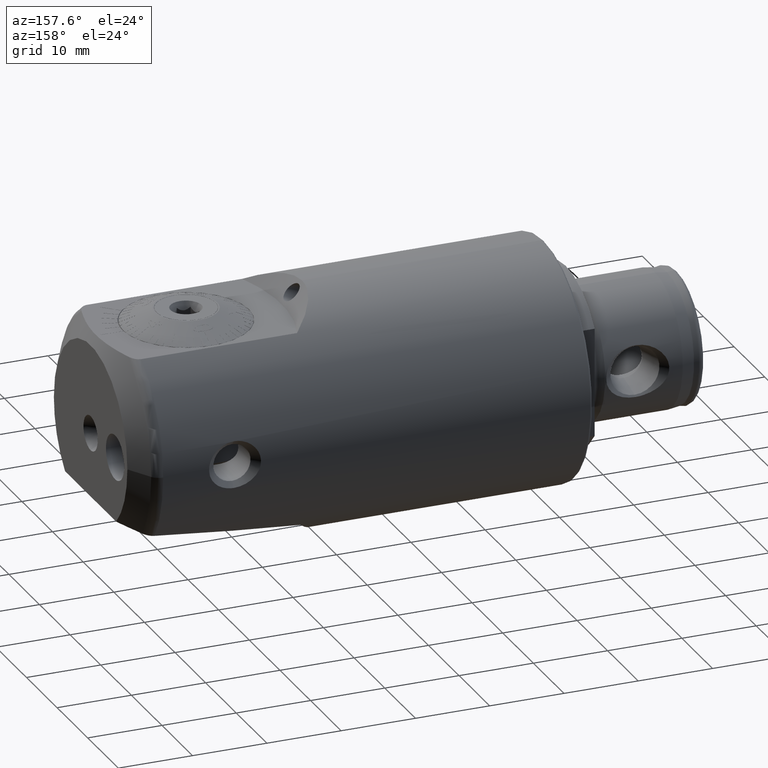
[diagram: clean part render]
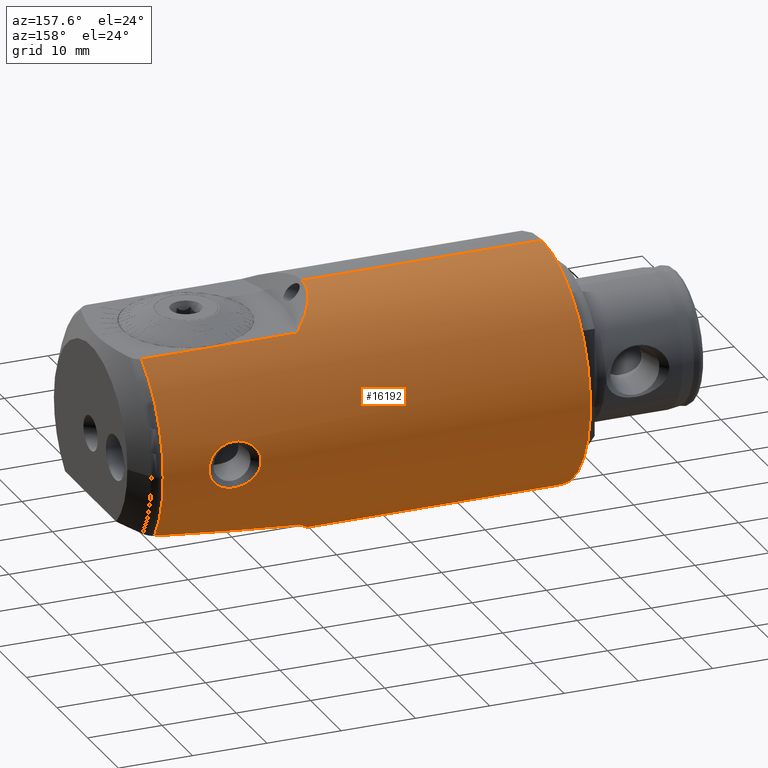
[diagram: same view with one face highlighted and labeled with its STEP entity id]
A machine part, auxiliary view. The second image highlights one B-rep face of the part: STEP entity #16192.
In plain terms, the highlighted cylindrical surface (partial cylindrical patch) has radius 16 mm, axis along (-1, -0, -0).
Its self-contained STEP definition (entity closure, byte-faithful):
#141 = AXIS2_PLACEMENT_3D ( 'NONE', #17672, #17674, #17676 ) ;
#301 = AXIS2_PLACEMENT_3D ( 'NONE', #9101, #9102, #9099 ) ;
#493 = VERTEX_POINT ( 'NONE', #16248 ) ;
#518 = VERTEX_POINT ( 'NONE', #16259 ) ;
#648 = CARTESIAN_POINT ( 'NONE',  ( 65.93024759672798000, 15.68066805693000500, -3.180668056930005900 ) ) ;
#653 = CARTESIAN_POINT ( 'NONE',  ( 66.14999999999999100, 15.68066805693001200, -3.180668056930010800 ) ) ;
#656 = CARTESIAN_POINT ( 'NONE',  ( 65.70956030477118800, 15.68459056435748000, -3.161498731312989200 ) ) ;
#657 = CARTESIAN_POINT ( 'NONE',  ( 65.28014272687077800, 15.69948841960792900, -3.086667906047177600 ) ) ;
#658 = CARTESIAN_POINT ( 'NONE',  ( 65.06939656807824700, 15.71045470693976200, -3.031069612519591900 ) ) ;
#659 = CARTESIAN_POINT ( 'NONE',  ( 64.44954066399158400, 15.75256210033807300, -2.807110196264788600 ) ) ;
#660 = CARTESIAN_POINT ( 'NONE',  ( 64.06681502441023200, 15.79223143391833200, -2.586464529091092100 ) ) ;
#661 = CARTESIAN_POINT ( 'NONE',  ( 63.56981425729423300, 15.85483690453569300, -2.155281846127038700 ) ) ;
#662 = CARTESIAN_POINT ( 'NONE',  ( 63.41991416715993100, 15.87578117310208400, -1.997441681491095400 ) ) ;
#663 = CARTESIAN_POINT ( 'NONE',  ( 63.15287156098673200, 15.91542126888841000, -1.652140115424484400 ) ) ;
#664 = CARTESIAN_POINT ( 'NONE',  ( 63.03582273714429400, 15.93412963509329900, -1.463579121479832600 ) ) ;
#665 = CARTESIAN_POINT ( 'NONE',  ( 62.84766771695179700, 15.96524657591765900, -1.072125385829373800 ) ) ;
#666 = CARTESIAN_POINT ( 'NONE',  ( 62.77478718657901200, 15.97791685011082700, -0.8673640699450379000 ) ) ;
#667 = CARTESIAN_POINT ( 'NONE',  ( 62.67513475264774300, 15.99544404931646500, -0.4380832844032718800 ) ) ;
#668 = CARTESIAN_POINT ( 'NONE',  ( 62.65010864343526000, 15.99998049989807400, -0.2194091680261499900 ) ) ;
#669 = CARTESIAN_POINT ( 'NONE',  ( 62.64989206529220000, 16.00001937289443500, 0.2165558753196834800 ) ) ;
#670 = CARTESIAN_POINT ( 'NONE',  ( 62.67525713860848700, 15.99542321432288700, 0.4381840948333076100 ) ) ;
#671 = CARTESIAN_POINT ( 'NONE',  ( 62.77408624225647300, 15.97803944789127900, 0.8647684706872269500 ) ) ;
#672 = CARTESIAN_POINT ( 'NONE',  ( 62.84678149136546900, 15.96539115991863000, 1.070445884492196700 ) ) ;
#673 = CARTESIAN_POINT ( 'NONE',  ( 63.03756251934264300, 15.93384389939410400, 1.467033697832248000 ) ) ;
#674 = CARTESIAN_POINT ( 'NONE',  ( 63.15365533904891700, 15.91530134820884100, 1.653251667751240100 ) ) ;
#675 = CARTESIAN_POINT ( 'NONE',  ( 63.42021544349785200, 15.87574004170802900, 1.997732767246089400 ) ) ;
#676 = CARTESIAN_POINT ( 'NONE',  ( 63.57296804875442600, 15.85442036536619700, 2.158277827120692800 ) ) ;
#677 = CARTESIAN_POINT ( 'NONE',  ( 63.90265460426788700, 15.81292969647114400, 2.443780414693624200 ) ) ;
#678 = CARTESIAN_POINT ( 'NONE',  ( 64.07992478002749700, 15.79266909325262700, 2.569836419364174100 ) ) ;
#679 = CARTESIAN_POINT ( 'NONE',  ( 64.45857213803472500, 15.75528231149727900, 2.789898850547859700 ) ) ;
#680 = CARTESIAN_POINT ( 'NONE',  ( 64.65873764266085300, 15.73834313276658400, 2.882744578033316500 ) ) ;
#681 = CARTESIAN_POINT ( 'NONE',  ( 65.27310972021663800, 15.69663236635317600, 3.104573372152891400 ) ) ;
#682 = CARTESIAN_POINT ( 'NONE',  ( 65.71426056626000900, 15.68066805693001200, 3.180668056930006800 ) ) ;
#683 = CARTESIAN_POINT ( 'NONE',  ( 66.14999999999999100, 15.68066805693000800, 3.180668056930005900 ) ) ;
#685 = CARTESIAN_POINT ( 'NONE',  ( 50.89302407359748800, 1.959483619477471300E-015, -16.00000000000000000 ) ) ;
#694 = CARTESIAN_POINT ( 'NONE',  ( 50.89302407359749500, 0.4898172530677997200, -16.00000000000000000 ) ) ;
#701 = CARTESIAN_POINT ( 'NONE',  ( 50.91845784687835400, 0.9785665110950624300, -15.97755473753653600 ) ) ;
#702 = CARTESIAN_POINT ( 'NONE',  ( 51.02016283566184300, 1.953930175133082900, -15.88779420430404700 ) ) ;
#703 = CARTESIAN_POINT ( 'NONE',  ( 51.09731911177381400, 2.443562096065129600, -15.81969769365619500 ) ) ;
#704 = CARTESIAN_POINT ( 'NONE',  ( 51.39715600109895600, 3.869897582993521800, -15.55503828478508400 ) ) ;
#705 = CARTESIAN_POINT ( 'NONE',  ( 51.68771900386881400, 4.775527532278456300, -15.29853840782103300 ) ) ;
#706 = CARTESIAN_POINT ( 'NONE',  ( 52.42394297953773500, 6.502085586484335000, -14.64833859702722500 ) ) ;
#707 = CARTESIAN_POINT ( 'NONE',  ( 52.85687732338615800, 7.294559223542079500, -14.26587555572344900 ) ) ;
#708 = CARTESIAN_POINT ( 'NONE',  ( 53.58255410240055700, 8.399808758080389700, -13.62441421628701800 ) ) ;
#709 = CARTESIAN_POINT ( 'NONE',  ( 53.83732533592468900, 8.754133212543072400, -13.39915182108889100 ) ) ;
#710 = CARTESIAN_POINT ( 'NONE',  ( 54.37061426253316700, 9.436767527475469200, -12.92747216047762200 ) ) ;
#711 = CARTESIAN_POINT ( 'NONE',  ( 54.64963269316368200, 9.765388110493335100, -12.68061091313664900 ) ) ;
#712 = CARTESIAN_POINT ( 'NONE',  ( 54.93487726142884500, 10.07676873988002200, -12.42814273183956800 ) ) ;
#833 = CARTESIAN_POINT ( 'NONE',  ( 18.30000000000000100, 0.0000000000000000000, 0.0000000000000000000 ) ) ;
#834 = DIRECTION ( 'NONE',  ( -1.000000000000000000, -0.0000000000000000000, -0.0000000000000000000 ) ) ;
#835 = DIRECTION ( 'NONE',  ( 0.0000000000000000000, 0.0000000000000000000, 1.000000000000000000 ) ) ;
#1752 = CARTESIAN_POINT ( 'NONE',  ( 66.14999999999999100, 15.68066805693000800, 3.180668056930005900 ) ) ;
#1753 = CARTESIAN_POINT ( 'NONE',  ( 66.36794414436711500, 15.68066805693000500, 3.180668056930005400 ) ) ;
#1757 = CARTESIAN_POINT ( 'NONE',  ( -7.755547907243324000, 0.0000000000000000000, 16.00000000000000000 ) ) ;
#1758 = CARTESIAN_POINT ( 'NONE',  ( 66.58706576147757500, 15.68448601364704900, 3.162021496453044200 ) ) ;
#1759 = CARTESIAN_POINT ( 'NONE',  ( 67.02105548486426300, 15.69951755015195400, 3.086523958888330200 ) ) ;
#1760 = CARTESIAN_POINT ( 'NONE',  ( 67.23172122014574400, 15.71054162491206800, 3.030597723974175500 ) ) ;
#1761 = CARTESIAN_POINT ( 'NONE',  ( 67.64067301998213100, 15.73830018833134000, 2.882975527926333800 ) ) ;
#1762 = CARTESIAN_POINT ( 'NONE',  ( 67.84050650532250900, 15.75519863752340300, 2.790372992525374900 ) ) ;
#1763 = CARTESIAN_POINT ( 'NONE',  ( 68.21950306092443800, 15.79260532957827600, 2.570230038228125600 ) ) ;
#1764 = CARTESIAN_POINT ( 'NONE',  ( 68.39630843057008700, 15.81281504738049300, 2.444465142838781400 ) ) ;
#1765 = CARTESIAN_POINT ( 'NONE',  ( 68.72426408313863500, 15.85405636346697700, 2.160885554866106300 ) ) ;
#1766 = CARTESIAN_POINT ( 'NONE',  ( 68.87701046517692300, 15.87534278570123000, 2.000922349376928400 ) ) ;
#1767 = CARTESIAN_POINT ( 'NONE',  ( 69.14479553096246900, 15.91505720830429700, 1.655642735663022800 ) ) ;
#1768 = CARTESIAN_POINT ( 'NONE',  ( 69.25955576764674500, 15.93338356920340900, 1.471693452280310000 ) ) ;
#1769 = CARTESIAN_POINT ( 'NONE',  ( 69.44922060849687300, 15.96471446435926800, 1.080039653125628400 ) ) ;
#1770 = CARTESIAN_POINT ( 'NONE',  ( 69.52434807641438400, 15.97776717693937000, 0.8696141877531715600 ) ) ;
#1771 = CARTESIAN_POINT ( 'NONE',  ( 69.62372863741734400, 15.99524176721875400, 0.4444250265720987600 ) ) ;
#1772 = CARTESIAN_POINT ( 'NONE',  ( 69.64942698229749900, 15.99989715092440800, 0.2279289502206821000 ) ) ;
#1773 = CARTESIAN_POINT ( 'NONE',  ( 69.65055426844531900, 16.00009948382853200, -0.2132532628065404700 ) ) ;
#1774 = CARTESIAN_POINT ( 'NONE',  ( 69.62552650801981700, 15.99556420600343300, -0.4328250147029831200 ) ) ;
#1775 = CARTESIAN_POINT ( 'NONE',  ( 69.52777043158556600, 15.97836296524794300, -0.8586784686503306000 ) ) ;
#1776 = CARTESIAN_POINT ( 'NONE',  ( 69.45367959496803700, 15.96547299089265000, -1.069022849691087400 ) ) ;
#1777 = CARTESIAN_POINT ( 'NONE',  ( 69.16973568678189100, 15.91850380481145100, -1.660658700799196200 ) ) ;
#1778 = CARTESIAN_POINT ( 'NONE',  ( 68.89395397208214400, 15.87547185180961100, -2.013125500134846500 ) ) ;
#1779 = CARTESIAN_POINT ( 'NONE',  ( 68.40030887728271100, 15.81328064468309700, -2.441510895268363100 ) ) ;
#1780 = CARTESIAN_POINT ( 'NONE',  ( 68.21975792345456600, 15.79263776535504800, -2.570020815454727300 ) ) ;
#1781 = CARTESIAN_POINT ( 'NONE',  ( 67.84174541365320000, 15.75531366458977600, -2.789714306157453200 ) ) ;
#1782 = CARTESIAN_POINT ( 'NONE',  ( 67.64419950772416700, 15.73856262980366900, -2.881559651726671100 ) ) ;
#1783 = CARTESIAN_POINT ( 'NONE',  ( 67.23245962075891700, 15.71056891051230600, -3.030472601221805300 ) ) ;
#1784 = CARTESIAN_POINT ( 'NONE',  ( 67.01765116724907000, 15.69938174379848000, -3.087209459655158500 ) ) ;
#1785 = CARTESIAN_POINT ( 'NONE',  ( 66.58730983644572600, 15.68451249469434600, -3.161885068922365900 ) ) ;
#1786 = CARTESIAN_POINT ( 'NONE',  ( 66.36982747392245600, 15.68066805693000800, -3.180668056930005000 ) ) ;
#1787 = CARTESIAN_POINT ( 'NONE',  ( 66.14999999999999100, 15.68066805693001200, -3.180668056930010800 ) ) ;
#1788 = CARTESIAN_POINT ( 'NONE',  ( -7.755547907243324000, 1.959434878635765100E-015, -16.00000000000000000 ) ) ;
#1789 = CARTESIAN_POINT ( 'NONE',  ( 54.29786653517982800, 8.419407272766681800, 13.62180372810708700 ) ) ;
#1790 = DIRECTION ( 'NONE',  ( -1.000000000000000000, -0.0000000000000000000, -0.0000000000000000000 ) ) ;
#1791 = DIRECTION ( 'NONE',  ( -1.000000000000000000, -0.0000000000000000000, -0.0000000000000000000 ) ) ;
#1792 = CARTESIAN_POINT ( 'NONE',  ( 54.89585076262644500, 8.968695557326043400, 13.25000000000000500 ) ) ;
#1794 = CARTESIAN_POINT ( 'NONE',  ( 53.73657514754146500, 7.826659259926636900, 13.97387064549644500 ) ) ;
#1795 = CARTESIAN_POINT ( 'NONE',  ( 52.96294649817802000, 6.854734206638621400, 14.46181292070098900 ) ) ;
#1796 = CARTESIAN_POINT ( 'NONE',  ( 52.71653490296843400, 6.516862720734882200, 14.61772193393445300 ) ) ;
#1797 = CARTESIAN_POINT ( 'NONE',  ( 52.25039493581805800, 5.808505361319873800, 14.91336849025902500 ) ) ;
#1798 = CARTESIAN_POINT ( 'NONE',  ( 52.03315880461074300, 5.441553644350830300, 15.05152567971204100 ) ) ;
#1799 = CARTESIAN_POINT ( 'NONE',  ( 51.63714565741103300, 4.685207867041570200, 15.30384783621396000 ) ) ;
#1800 = CARTESIAN_POINT ( 'NONE',  ( 51.45778869791659800, 4.294982852061418800, 15.41838099808054400 ) ) ;
#1801 = CARTESIAN_POINT ( 'NONE',  ( 51.14108803634837100, 3.487275837665125200, 15.62089170097244500 ) ) ;
#1802 = CARTESIAN_POINT ( 'NONE',  ( 51.00296599382908600, 3.066686304640677800, 15.70936846456887700 ) ) ;
#1803 = CARTESIAN_POINT ( 'NONE',  ( 50.66770138945963000, 1.780917082867484500, 15.92430921988762400 ) ) ;
#1804 = CARTESIAN_POINT ( 'NONE',  ( 50.55000000000003300, 0.9023672326635421300, 16.00000000000000000 ) ) ;
#1805 = CARTESIAN_POINT ( 'NONE',  ( 50.55000000000001800, 0.0000000000000000000, 16.00000000000000000 ) ) ;
#1806 = CARTESIAN_POINT ( 'NONE',  ( -7.755547907243324000, 8.968695557326043400, 13.25000000000000400 ) ) ;
#1807 = DIRECTION ( 'NONE',  ( -1.000000000000000000, -0.0000000000000000000, -0.0000000000000000000 ) ) ;
#1808 = CARTESIAN_POINT ( 'NONE',  ( 54.93487726142884500, 10.07676873988002200, -12.42814273183956800 ) ) ;
#1809 = CARTESIAN_POINT ( 'NONE',  ( 60.95737948481706800, 11.25322131286442400, -11.47427208783499000 ) ) ;
#1810 = CARTESIAN_POINT ( 'NONE',  ( 75.82457351945704700, 1.006387064120248000E-014, 0.0000000000000000000 ) ) ;
#1811 = DIRECTION ( 'NONE',  ( 1.000000000000000000, 1.234262531949140800E-016, -0.0000000000000000000 ) ) ;
#1812 = DIRECTION ( 'NONE',  ( 0.0000000000000000000, 1.000000000000000000, 0.0000000000000000000 ) ) ;
#1814 = CARTESIAN_POINT ( 'NONE',  ( 67.96732918834933900, 12.28337525204242700, -10.36400512733793500 ) ) ;
#1815 = CARTESIAN_POINT ( 'NONE',  ( 75.82457351945704700, 13.14663425939954100, -9.119539881462358700 ) ) ;
#1960 = EDGE_LOOP ( 'NONE', ( #20132, #20133 ) ) ;
#1979 = EDGE_LOOP ( 'NONE', ( #20134, #20135, #20136, #20137, #20138, #20139, #20140, #20141, #20142 ) ) ;
#5147 = B_SPLINE_CURVE_WITH_KNOTS ( 'NONE', 3,
 ( #653, #648, #656, #657, #658, #659, #660, #661, #662, #663, #664, #665, #666, #667, #668, #669, #670, #671, #672, #673, #674, #675, #676, #677, #678, #679, #680, #681, #682, #683 ),
 .UNSPECIFIED., .F., .F.,
 ( 4, 2, 2, 2, 2, 2, 2, 2, 2, 2, 2, 2, 2, 2, 4 ),
 ( 0.01844048866585898400, 0.01909625740138253700, 0.01975202613690609300, 0.02106356360795320200, 0.02171933234347674100, 0.02237510107900028000, 0.02303086981452381900, 0.02368663855004735800, 0.02434240728557089700, 0.02499817602109443600, 0.02565394475661797500, 0.02630971349214151400, 0.02696548222766505200, 0.02762125096318859100, 0.02893278843423566900 ),
 .UNSPECIFIED. ) ;
#5157 = B_SPLINE_CURVE_WITH_KNOTS ( 'NONE', 3,
 ( #685, #694, #701, #702, #703, #704, #705, #706, #707, #708, #709, #710, #711, #712 ),
 .UNSPECIFIED., .F., .F.,
 ( 4, 2, 2, 2, 2, 2, 4 ),
 ( 0.02723061259596744300, 0.02868676516256175200, 0.03014291772915605700, 0.03305522286234467000, 0.03596752799553328000, 0.03742368056212758100, 0.03887983312872189000 ),
 .UNSPECIFIED. ) ;
#5361 = VERTEX_POINT ( 'NONE', #11554 ) ;
#8291 = LINE ( 'NONE', #1757, #8299 ) ;
#8294 = CIRCLE ( 'NONE', #10596, 15.99999999999999600 ) ;
#8296 = LINE ( 'NONE', #1788, #8297 ) ;
#8297 = VECTOR ( 'NONE', #1790, 1000.000000000000000 ) ;
#8299 = VECTOR ( 'NONE', #1791, 1000.000000000000000 ) ;
#8300 = LINE ( 'NONE', #1806, #8301 ) ;
#8301 = VECTOR ( 'NONE', #1807, 1000.000000000000000 ) ;
#9099 = DIRECTION ( 'NONE',  ( 0.0000000000000000000, 0.0000000000000000000, 1.000000000000000000 ) ) ;
#9101 = CARTESIAN_POINT ( 'NONE',  ( -7.755547907243324000, 0.0000000000000000000, 0.0000000000000000000 ) ) ;
#9102 = DIRECTION ( 'NONE',  ( -1.000000000000000000, -0.0000000000000000000, -0.0000000000000000000 ) ) ;
#10112 = FACE_BOUND ( 'NONE', #1960, .T. ) ;
#10126 = FACE_OUTER_BOUND ( 'NONE', #1979, .T. ) ;
#10128 = CYLINDRICAL_SURFACE ( 'NONE', #301, 16.00000000000000000 ) ;
#10596 = AXIS2_PLACEMENT_3D ( 'NONE', #1810, #1811, #1812 ) ;
#11056 = EDGE_CURVE ( 'NONE', #518, #493, #5147, .T. ) ;
#11063 = EDGE_CURVE ( 'NONE', #12086, #12094, #5157, .T. ) ;
#11088 = EDGE_CURVE ( 'NONE', #5361, #12085, #13462, .T. ) ;
#11129 = EDGE_CURVE ( 'NONE', #16111, #12098, #13512, .T. ) ;
#11554 = CARTESIAN_POINT ( 'NONE',  ( 18.30000000000000100, 0.0000000000000000000, 16.00000000000000000 ) ) ;
#11930 = CARTESIAN_POINT ( 'NONE',  ( 75.82457351945704700, 13.14663425939954100, -9.119539881462358700 ) ) ;
#11940 = CARTESIAN_POINT ( 'NONE',  ( 54.89585076262644500, 8.968695557326043400, 13.25000000000000500 ) ) ;
#12085 = VERTEX_POINT ( 'NONE', #17726 ) ;
#12086 = VERTEX_POINT ( 'NONE', #17767 ) ;
#12094 = VERTEX_POINT ( 'NONE', #17779 ) ;
#12098 = VERTEX_POINT ( 'NONE', #17786 ) ;
#13462 = CIRCLE ( 'NONE', #22021, 16.00000000000000000 ) ;
#13512 = CIRCLE ( 'NONE', #141, 15.99999999999999600 ) ;
#15326 = CARTESIAN_POINT ( 'NONE',  ( 50.55000000000001800, 0.0000000000000000000, 16.00000000000000000 ) ) ;
#15342 = CARTESIAN_POINT ( 'NONE',  ( 75.82457351945704700, 8.968695557326041600, 13.25000000000000400 ) ) ;
#16111 = VERTEX_POINT ( 'NONE', #11930 ) ;
#16121 = VERTEX_POINT ( 'NONE', #11940 ) ;
#16192 = ADVANCED_FACE ( 'NONE', ( #10112, #10126 ), #10128, .T. ) ;
#16248 = CARTESIAN_POINT ( 'NONE',  ( 66.14999999999999100, 15.68066805693000800, 3.180668056930005900 ) ) ;
#16259 = CARTESIAN_POINT ( 'NONE',  ( 66.14999999999999100, 15.68066805693001200, -3.180668056930010800 ) ) ;
#17672 = CARTESIAN_POINT ( 'NONE',  ( 75.82457351945704700, 1.006387064120248000E-014, 0.0000000000000000000 ) ) ;
#17674 = DIRECTION ( 'NONE',  ( 1.000000000000000000, 1.234262531949140800E-016, -0.0000000000000000000 ) ) ;
#17676 = DIRECTION ( 'NONE',  ( 0.0000000000000000000, 1.000000000000000000, 0.0000000000000000000 ) ) ;
#17726 = CARTESIAN_POINT ( 'NONE',  ( 18.30000000000000100, 1.959434878635765100E-015, -16.00000000000000000 ) ) ;
#17767 = CARTESIAN_POINT ( 'NONE',  ( 50.89302407359748800, 1.959483619477471300E-015, -16.00000000000000000 ) ) ;
#17779 = CARTESIAN_POINT ( 'NONE',  ( 54.93487726142884500, 10.07676873988002200, -12.42814273183956800 ) ) ;
#17786 = CARTESIAN_POINT ( 'NONE',  ( 75.82457351945704700, 16.00000000000000700, 0.0000000000000000000 ) ) ;
#20132 = ORIENTED_EDGE ( 'NONE', *, *, #20973, .F. ) ;
#20133 = ORIENTED_EDGE ( 'NONE', *, *, #11056, .F. ) ;
#20134 = ORIENTED_EDGE ( 'NONE', *, *, #11063, .F. ) ;
#20135 = ORIENTED_EDGE ( 'NONE', *, *, #20974, .T. ) ;
#20136 = ORIENTED_EDGE ( 'NONE', *, *, #11088, .F. ) ;
#20137 = ORIENTED_EDGE ( 'NONE', *, *, #20975, .F. ) ;
#20138 = ORIENTED_EDGE ( 'NONE', *, *, #20976, .F. ) ;
#20139 = ORIENTED_EDGE ( 'NONE', *, *, #20977, .F. ) ;
#20140 = ORIENTED_EDGE ( 'NONE', *, *, #20978, .F. ) ;
#20141 = ORIENTED_EDGE ( 'NONE', *, *, #11129, .F. ) ;
#20142 = ORIENTED_EDGE ( 'NONE', *, *, #20979, .F. ) ;
#20918 = B_SPLINE_CURVE_WITH_KNOTS ( 'NONE', 3,
 ( #1752, #1753, #1758, #1759, #1760, #1761, #1762, #1763, #1764, #1765, #1766, #1767, #1768, #1769, #1770, #1771, #1772, #1773, #1774, #1775, #1776, #1777, #1778, #1779, #1780, #1781, #1782, #1783, #1784, #1785, #1786, #1787 ),
 .UNSPECIFIED., .F., .F.,
 ( 4, 2, 2, 2, 2, 2, 2, 2, 2, 2, 2, 2, 2, 2, 2, 4 ),
 ( 0.007944604573684786400, 0.008600597329445680600, 0.009256590085206576500, 0.009912582840967470700, 0.01056857559672836500, 0.01122456835248926100, 0.01188056110825015700, 0.01253655386401105100, 0.01319254661977194700, 0.01384853937553284100, 0.01450453213129373700, 0.01581651764281550400, 0.01647251039857637600, 0.01712850315433724800, 0.01778449591009811600, 0.01844048866585898400 ),
 .UNSPECIFIED. ) ;
#20919 = B_SPLINE_CURVE_WITH_KNOTS ( 'NONE', 3,
 ( #1792, #1789, #1794, #1795, #1796, #1797, #1798, #1799, #1800, #1801, #1802, #1803, #1804, #1805 ),
 .UNSPECIFIED., .F., .F.,
 ( 4, 2, 2, 2, 2, 2, 4 ),
 ( 0.0006493374833702063200, 0.003314901113496604800, 0.004647682928559810800, 0.005980464743623017800, 0.007313246558686224700, 0.008646028373749430800, 0.01131159200387584100 ),
 .UNSPECIFIED. ) ;
#20923 =( BOUNDED_CURVE ( )  B_SPLINE_CURVE ( 3, ( #1808, #1809, #1814, #1815 ),
 .UNSPECIFIED., .F., .F. ) 
 B_SPLINE_CURVE_WITH_KNOTS ( ( 4, 4 ),
 ( 0.6812931887358360000, 0.9643254709675215300 ),
 .UNSPECIFIED. ) 
 CURVE ( )  GEOMETRIC_REPRESENTATION_ITEM ( )  RATIONAL_B_SPLINE_CURVE ( ( 1.000000000000000000, 0.9933355274290592800, 0.9933355274290592800, 1.000000000000000000 ) ) 
 REPRESENTATION_ITEM ( '' )  );
#20973 = EDGE_CURVE ( 'NONE', #493, #518, #20918, .T. ) ;
#20974 = EDGE_CURVE ( 'NONE', #12086, #12085, #8296, .T. ) ;
#20975 = EDGE_CURVE ( 'NONE', #21677, #5361, #8291, .T. ) ;
#20976 = EDGE_CURVE ( 'NONE', #16121, #21677, #20919, .T. ) ;
#20977 = EDGE_CURVE ( 'NONE', #21710, #16121, #8300, .T. ) ;
#20978 = EDGE_CURVE ( 'NONE', #12098, #21710, #8294, .T. ) ;
#20979 = EDGE_CURVE ( 'NONE', #12094, #16111, #20923, .T. ) ;
#21677 = VERTEX_POINT ( 'NONE', #15326 ) ;
#21710 = VERTEX_POINT ( 'NONE', #15342 ) ;
#22021 = AXIS2_PLACEMENT_3D ( 'NONE', #833, #834, #835 ) ;